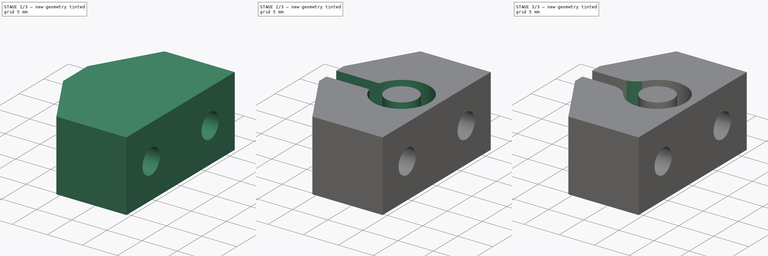
[diagram: build sequence overview — one tinted view per stage of 3, left to right]
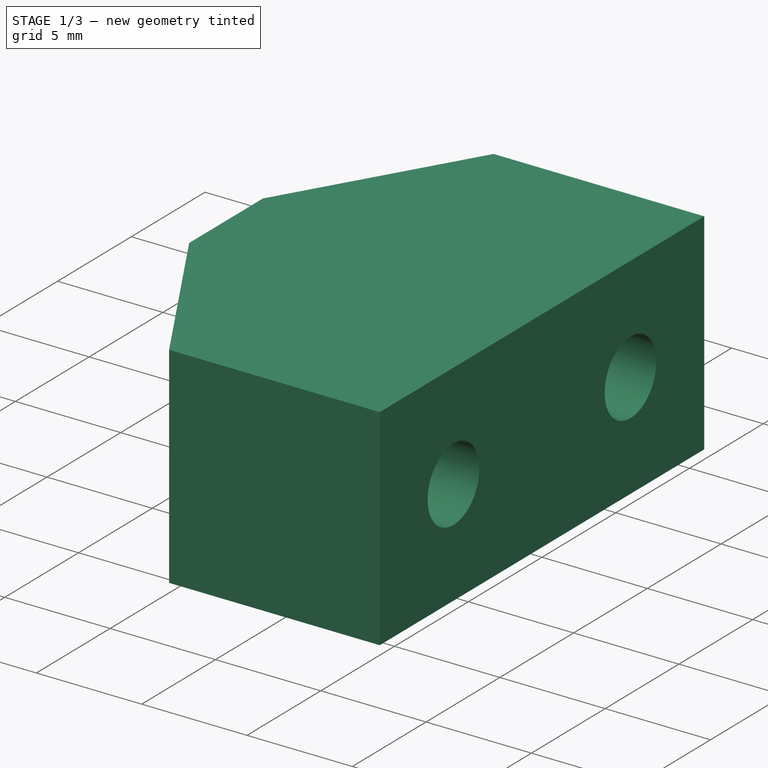
[diagram: stage 1 of 3 — iso view after this stage's code; geometry added in this stage tinted green]
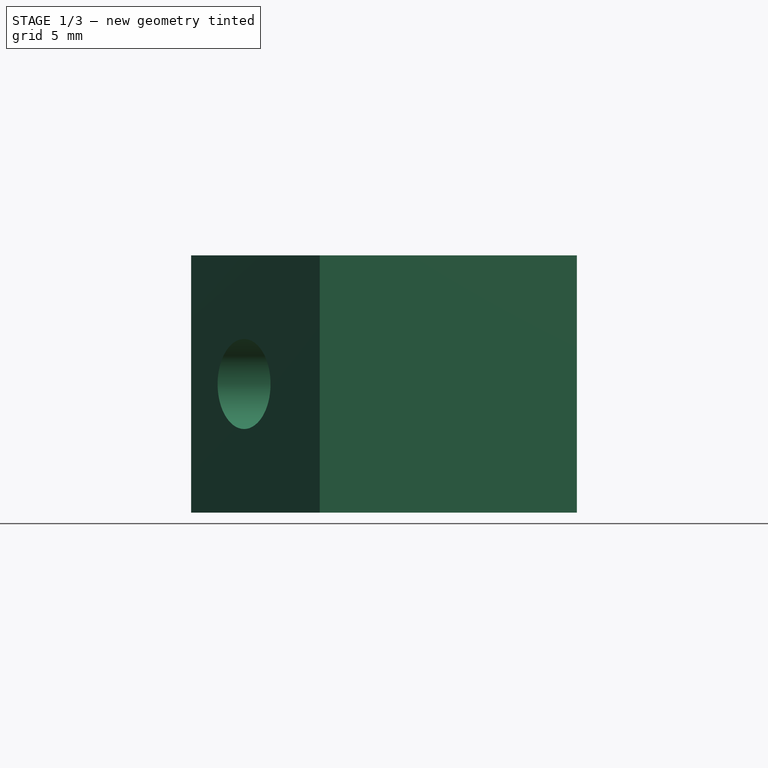
[diagram: stage 1 of 3 — front view after this stage's code; geometry added in this stage tinted green]
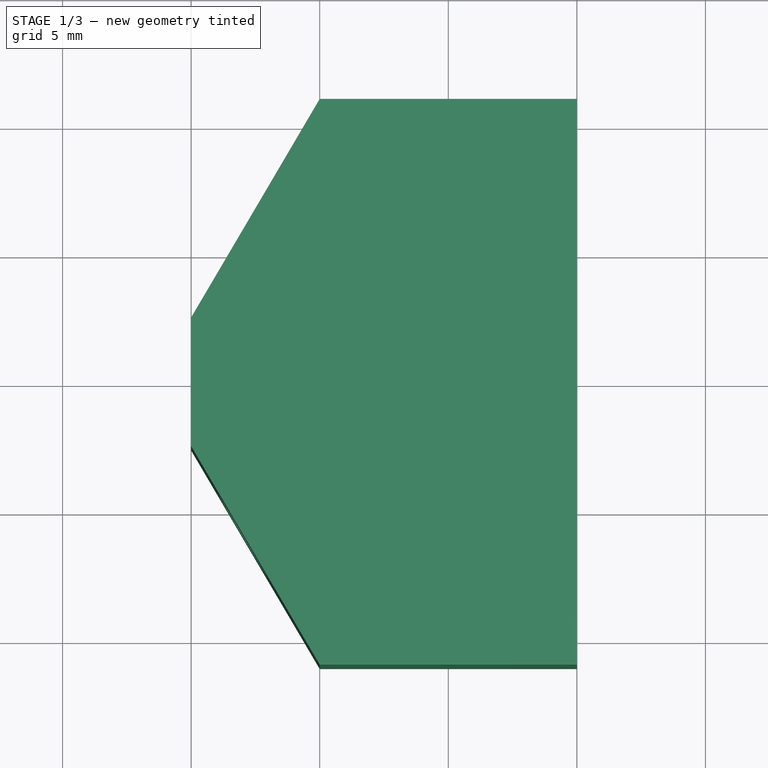
[diagram: stage 1 of 3 — top view after this stage's code; geometry added in this stage tinted green]
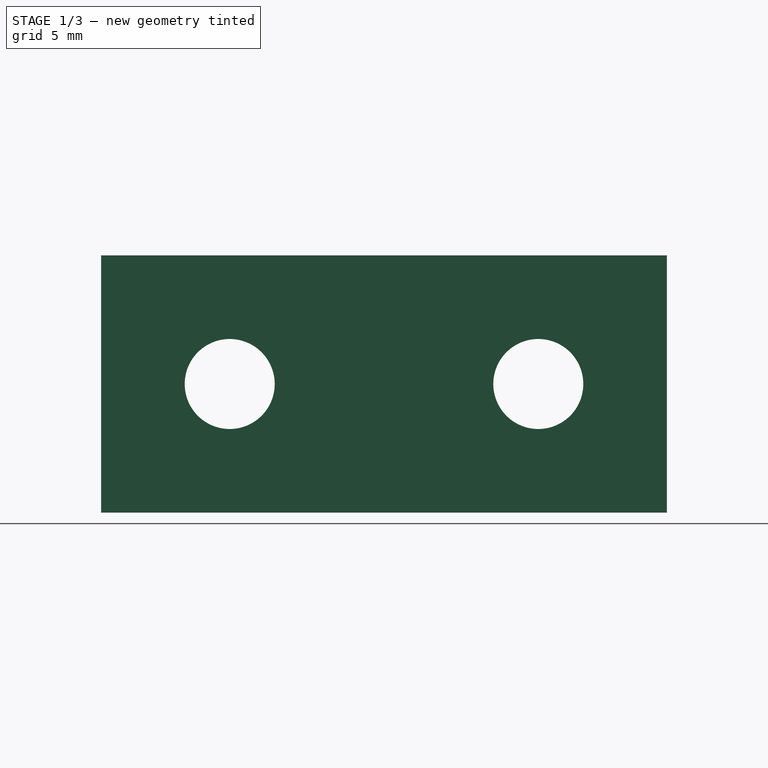
[diagram: stage 1 of 3 — right view after this stage's code; geometry added in this stage tinted green]
FCSTD DOCUMENT  (FreeCAD 0.14R3342 (Git))
Label: belt-clamp_2
License: CC-BY 3.0
LicenseURL: http://creativecommons.org/licenses/by/3.0/
objects: Sketcher::SketchObject×5, PartDesign::Pocket×4, PartDesign::Fillet×2, PartDesign::Pad×1
note: 17 computed .brp shape members not serialized (recipe doc carries the construction recipe); baked Part::Feature solids carry a one-line shape summary decoded from their .brp

FEATURE [Sketcher::SketchObject] Sketch
  sketch-geometry (6):
    g0: LineSegment StartX=-5 StartY=11 StartZ=0 EndX=5 EndY=11 EndZ=0
    g1: LineSegment StartX=5 StartY=11 StartZ=0 EndX=5 EndY=-11 EndZ=0
    g2: LineSegment StartX=5 StartY=-11 StartZ=0 EndX=-5 EndY=-11 EndZ=0
    g3: LineSegment StartX=-5 StartY=11 StartZ=0 EndX=-10 EndY=2.5 EndZ=0
    g4: LineSegment StartX=-10 StartY=2.5 StartZ=0 EndX=-10 EndY=-2.5 EndZ=0
    g5: LineSegment StartX=-10 StartY=-2.5 StartZ=0 EndX=-5 EndY=-11 EndZ=0
  constraints (18):
    c: Coincident(g0,g1)
    c: Coincident(g1,g2)
    c: Horizontal(g0)
    c: Horizontal(g2)
    c: Vertical(g1)
    c: Distance(g2) = 10
    c: Distance(g1) = 22
    c: Symmetric(g0,g1,g-1)
    c: Symmetric(g2,g1,g-2)
    c: Coincident(g0,g3)
    c: Coincident(g3,g4)
    c: Vertical(g4)
    c: Coincident(g4,g5)
    c: Coincident(g5,g2)
    c: Distance(g4) = 5
    c: Symmetric(g4,g3,g-1)
    c: Equal(g0,g2)
    c: DistanceX(g3,g0) = 5
FEATURE [PartDesign::Pad] Pad
  Length = 10
  Length2 = 100
  Sketch = -> Sketch
  Type = 0
FEATURE [Sketcher::SketchObject] Sketch001
  Placement = pos=(5,0,0) rot=(0.57735,0.57735,0.57735;2.0944rad)
  Support = -> Pad [Face2]
  sketch-geometry (2):
    g0: Circle CenterX=-6 CenterY=5 CenterZ=0 NormalX=0 NormalY=0 NormalZ=1 Radius=1.75
    g1: Circle CenterX=6 CenterY=5 CenterZ=0 NormalX=0 NormalY=0 NormalZ=1 Radius=1.75
  constraints (5):
    c: Symmetric(g0,g1,g-2)
    c: Distance(g0,g1) = 12
    c: DistanceY(g-1,g0) = 5
    c: Equal(g1,g0)
    c: Radius(g1) = 1.75
FEATURE [PartDesign::Pocket] Pocket
  Length = 5
  Sketch = -> Sketch001
  Type = 1
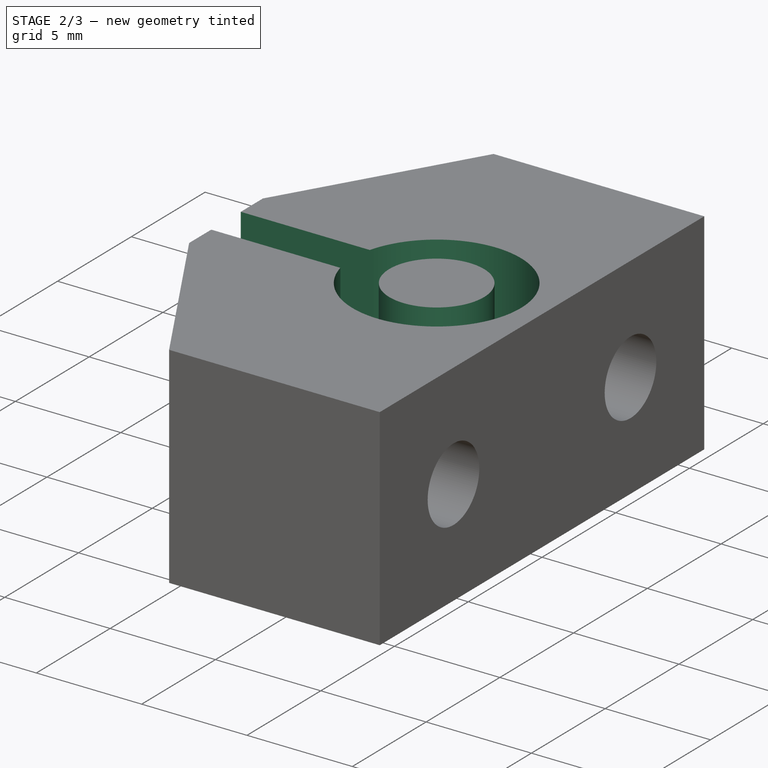
[diagram: stage 2 of 3 — iso view after this stage's code; geometry added in this stage tinted green]
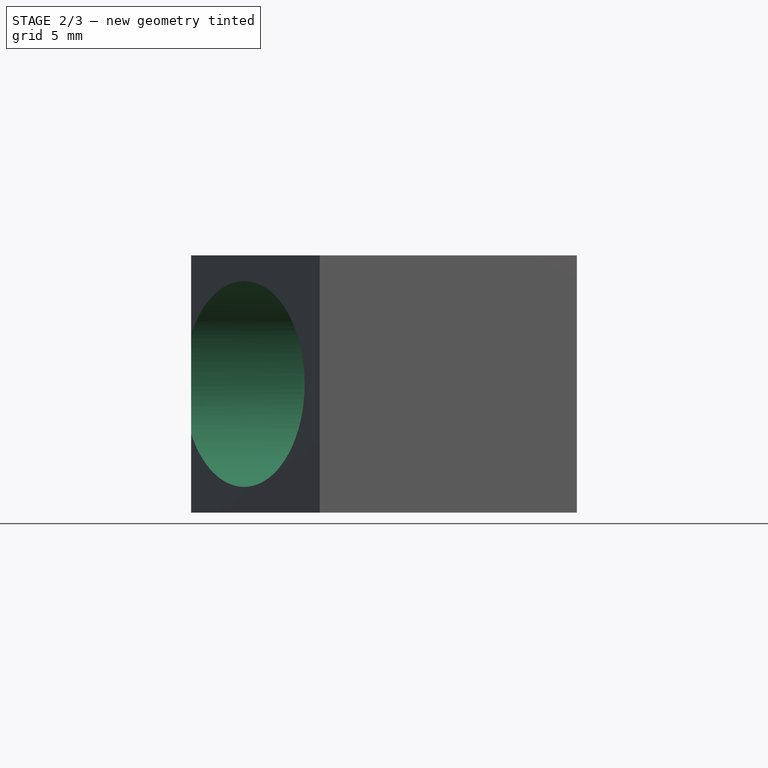
[diagram: stage 2 of 3 — front view after this stage's code; geometry added in this stage tinted green]
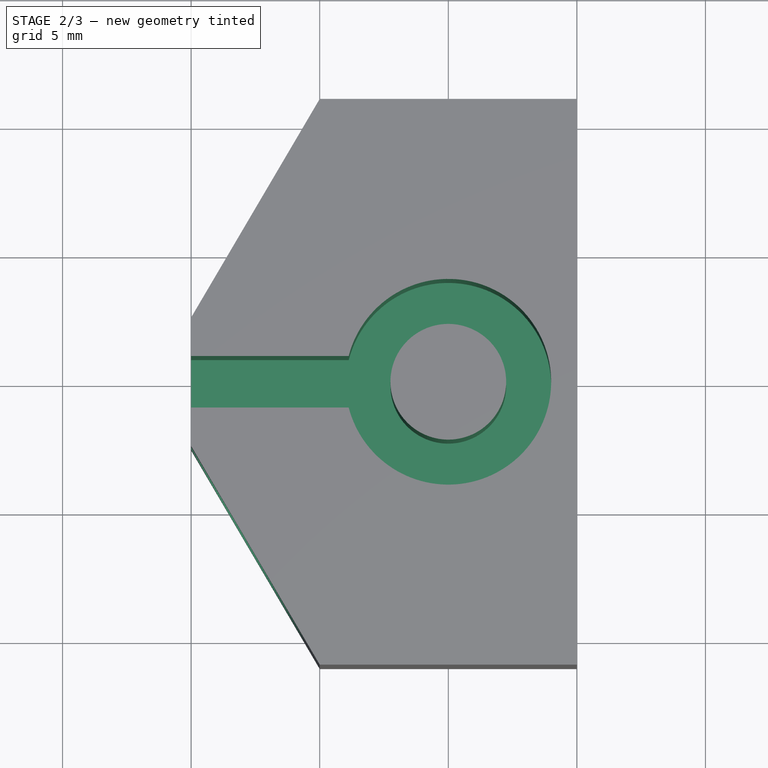
[diagram: stage 2 of 3 — top view after this stage's code; geometry added in this stage tinted green]
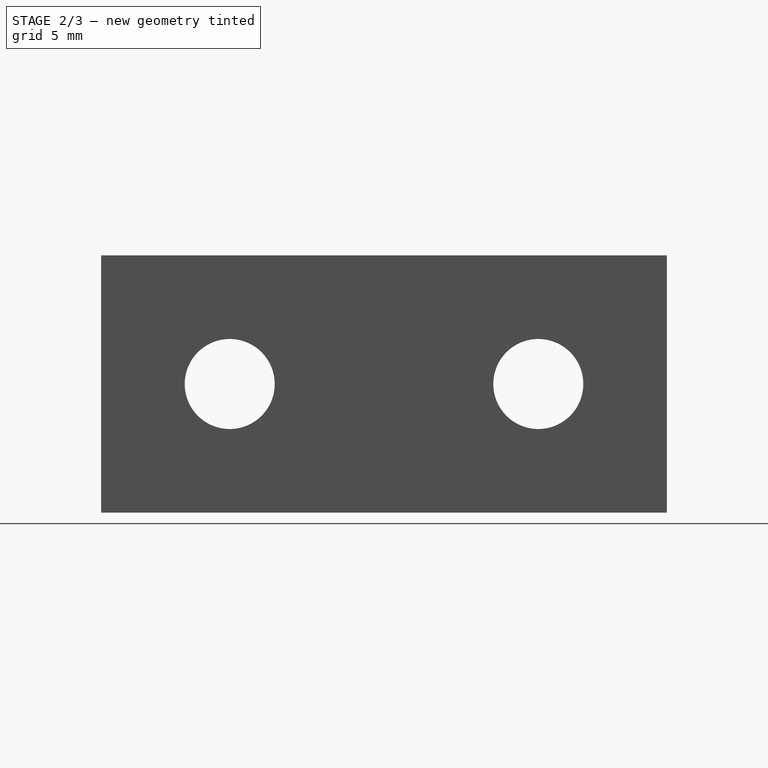
[diagram: stage 2 of 3 — right view after this stage's code; geometry added in this stage tinted green]
FEATURE [Sketcher::SketchObject] Sketch002
  Placement = pos=(-10,0,0) rot=(0.57735,-0.57735,-0.57735;2.0944rad)
  Support = -> Pocket [Face7]
  sketch-geometry (2):
    g0: Circle CenterX=-6 CenterY=5 CenterZ=0 NormalX=0 NormalY=0 NormalZ=1 Radius=4
    g1: Circle CenterX=6 CenterY=5 CenterZ=0 NormalX=0 NormalY=0 NormalZ=1 Radius=4
  constraints (5):
    c: Symmetric(g1,g0,g-2)
    c: Distance(g0,g1) = 12
    c: DistanceY(g0) = 5
    c: Equal(g0,g1)
    c: Radius(g1) = 4
FEATURE [PartDesign::Pocket] Pocket001
  Length = 5
  Sketch = -> Sketch002
  Type = 0
FEATURE [Sketcher::SketchObject] Sketch005
  Placement = pos=(0,0,10) rot=(0,0,1;0rad)
  Support = -> Pocket001 [Face5]
  sketch-geometry (2):
    g0: Circle CenterX=0 CenterY=0 CenterZ=0 NormalX=0 NormalY=0 NormalZ=1 Radius=4
    g1: Circle CenterX=0 CenterY=0 CenterZ=0 NormalX=0 NormalY=0 NormalZ=1 Radius=2.25
  constraints (4):
    c: Coincident(g0,g-1)
    c: Coincident(g1,g-1)
    c: Radius(g1) = 2.25
    c: Radius(g0) = 4
FEATURE [PartDesign::Pocket] Pocket002
  Length = 9
  Sketch = -> Sketch005
  Type = 0
FEATURE [Sketcher::SketchObject] Sketch006
  Placement = pos=(0,0,10) rot=(0,0,1;0rad)
  Support = -> Pocket002 [Face5]
  sketch-geometry (4):
    g0: LineSegment StartX=-10 StartY=1 StartZ=0 EndX=-3.5 EndY=1 EndZ=0
    g1: LineSegment StartX=-3.5 StartY=1 StartZ=0 EndX=-3.5 EndY=-1 EndZ=0
    g2: LineSegment StartX=-3.5 StartY=-1 StartZ=0 EndX=-10 EndY=-1 EndZ=0
    g3: LineSegment StartX=-10 StartY=-1 StartZ=0 EndX=-10 EndY=1 EndZ=0
  constraints (12):
    c: Coincident(g0,g1)
    c: Coincident(g1,g2)
    c: Coincident(g2,g3)
    c: Coincident(g3,g0)
    c: Horizontal(g0)
    c: Horizontal(g2)
    c: Vertical(g1)
    c: Vertical(g3)
    c: Symmetric(g0,g2,g-1)
    c: Distance(g1) = 2
    c: Distance(g2) = 6.5
    c: DistanceX(g-1,g1) = -3.5
FEATURE [PartDesign::Pocket] Pocket003
  Length = 9
  Sketch = -> Sketch006
  Type = 0
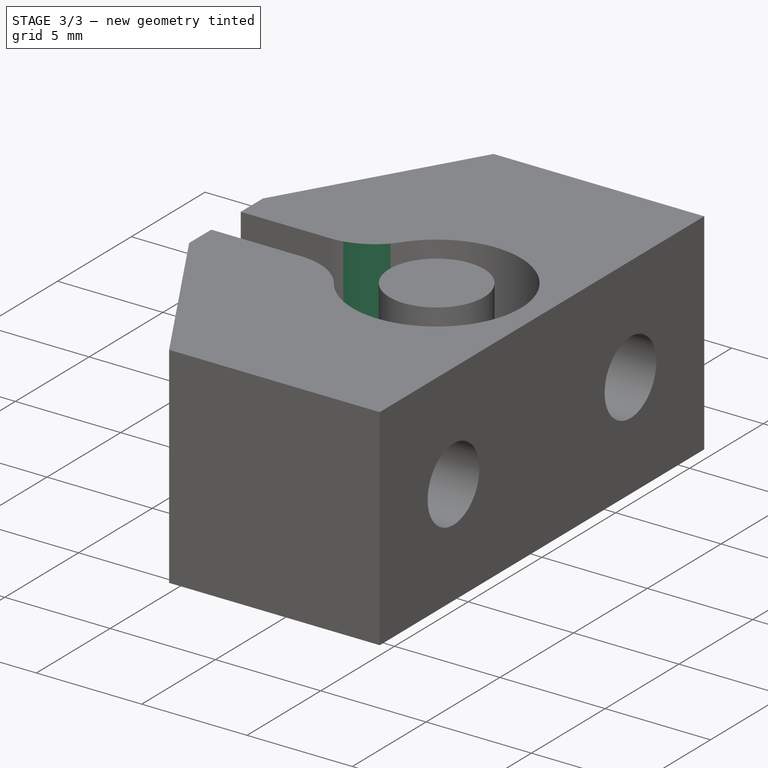
[diagram: stage 3 of 3 — iso view after this stage's code; geometry added in this stage tinted green]
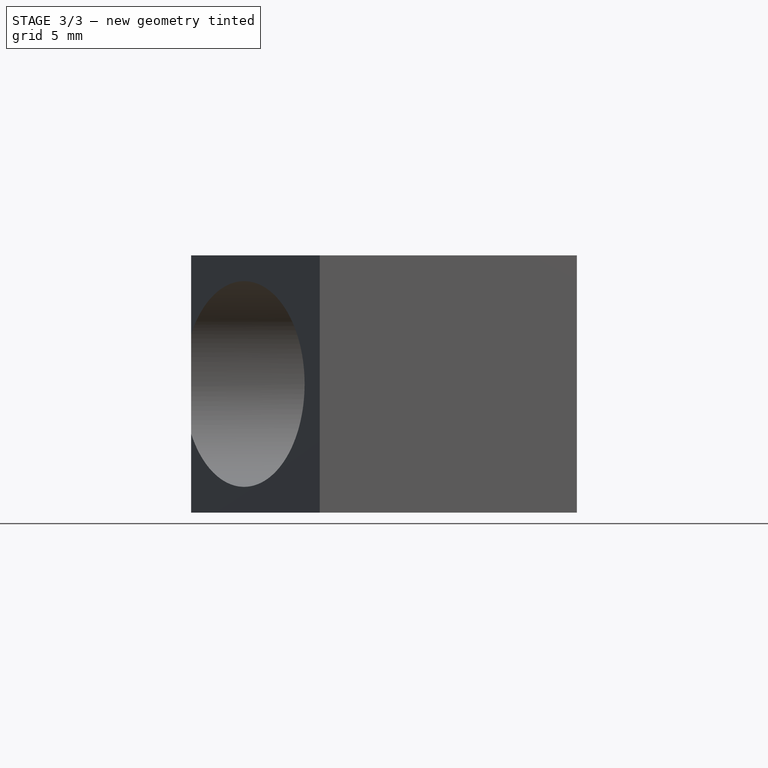
[diagram: stage 3 of 3 — front view after this stage's code; geometry added in this stage tinted green]
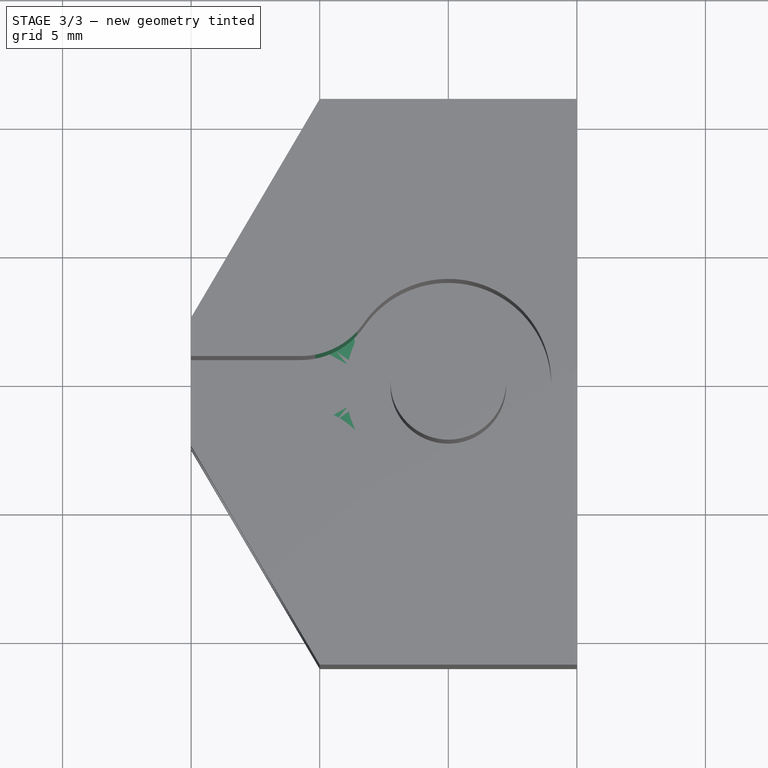
[diagram: stage 3 of 3 — top view after this stage's code; geometry added in this stage tinted green]
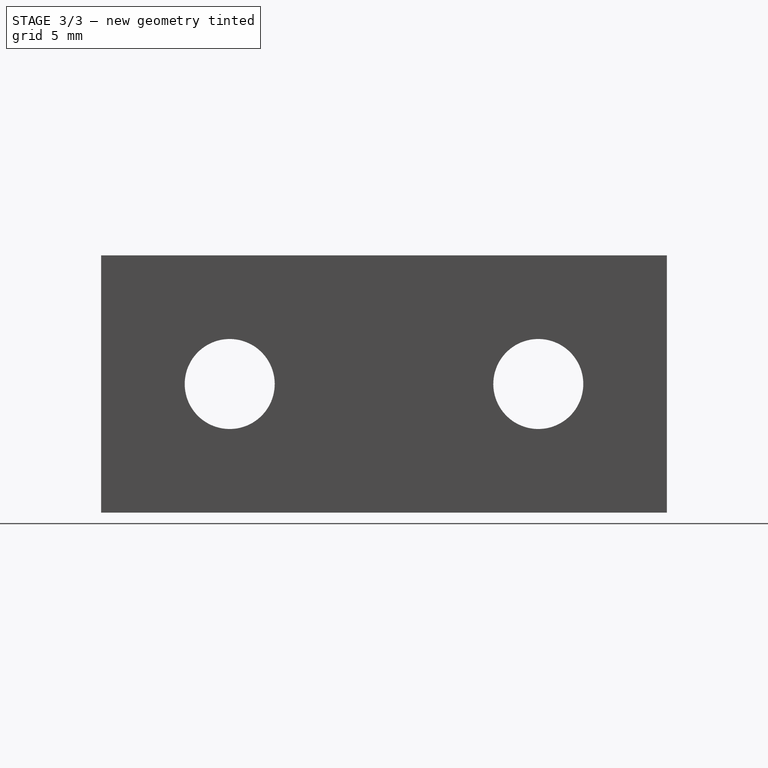
[diagram: stage 3 of 3 — right view after this stage's code; geometry added in this stage tinted green]
FEATURE [PartDesign::Fillet] Fillet
  Base = -> Pocket003 [Edge49]
  Radius = 3
FEATURE [PartDesign::Fillet] Fillet001
  Base = -> Fillet [Edge19]
  Radius = 3
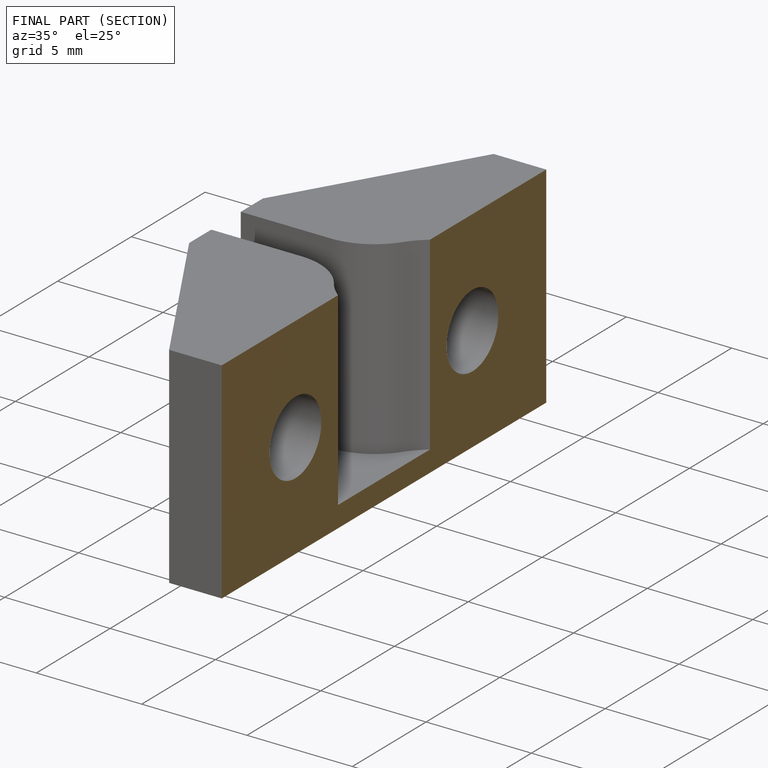
[diagram: finished part — half-section view (interior)]
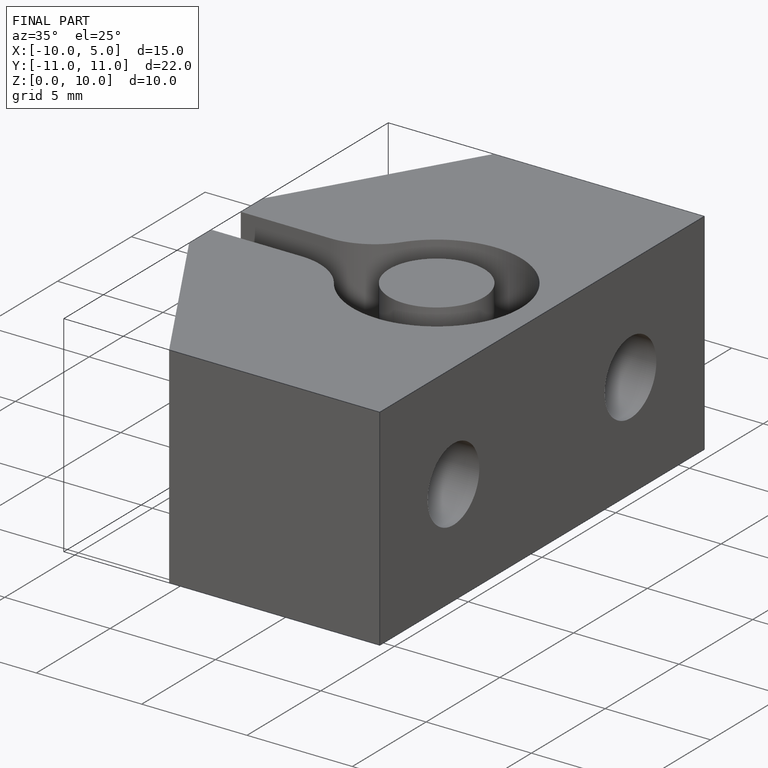
[diagram: finished part — iso view with bounding-box wireframe]
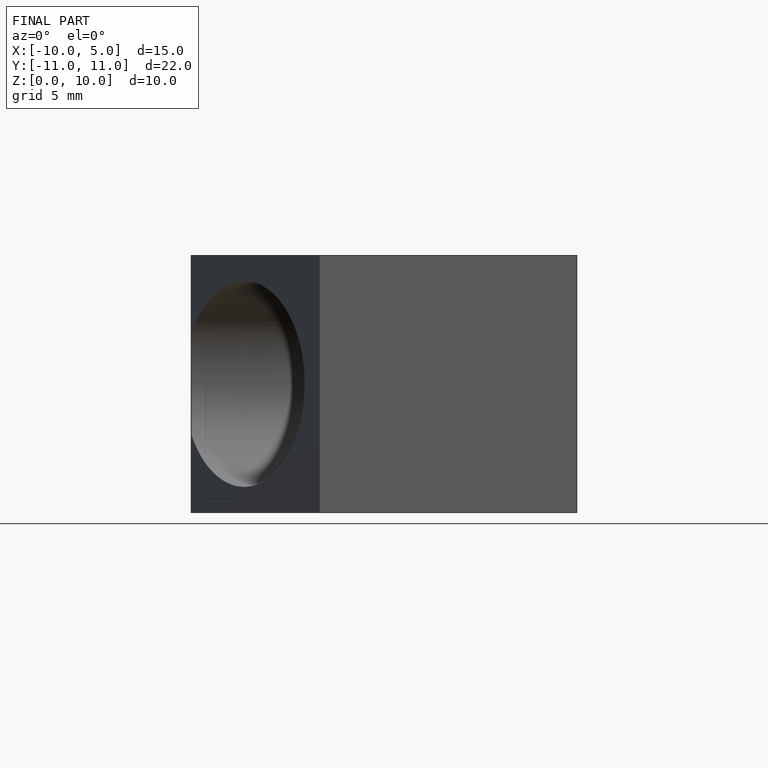
[diagram: finished part — front view with bounding-box wireframe]
